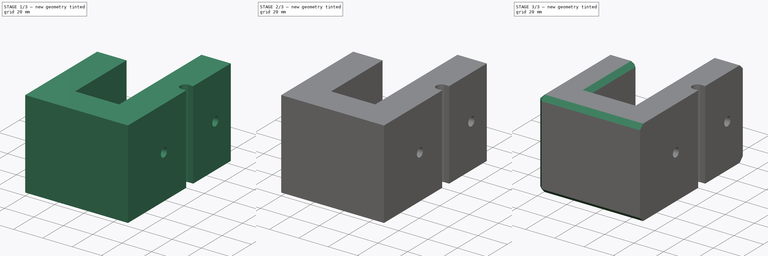
[diagram: build sequence overview — one tinted view per stage of 3, left to right]
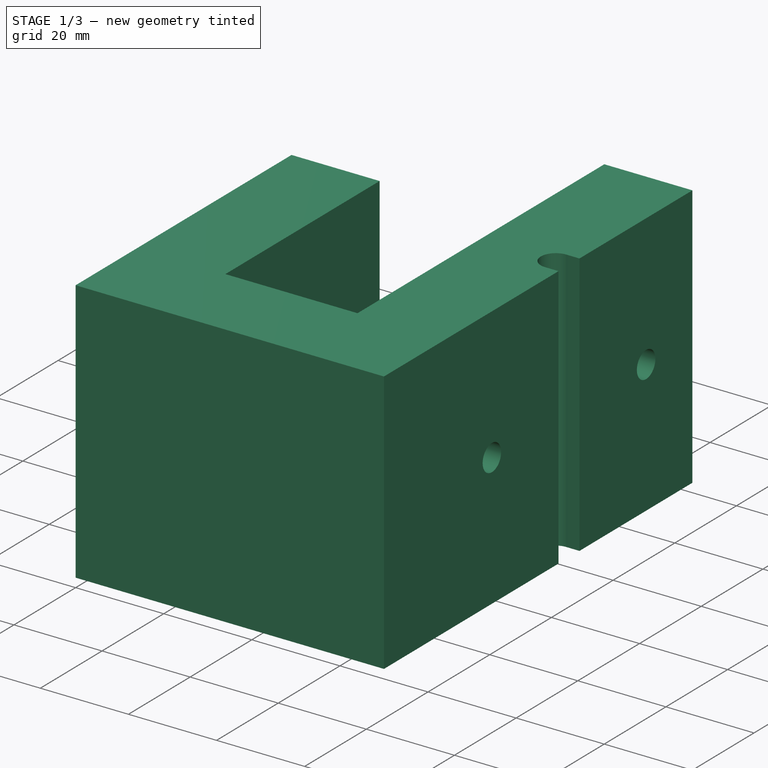
[diagram: stage 1 of 3 — iso view after this stage's code; geometry added in this stage tinted green]
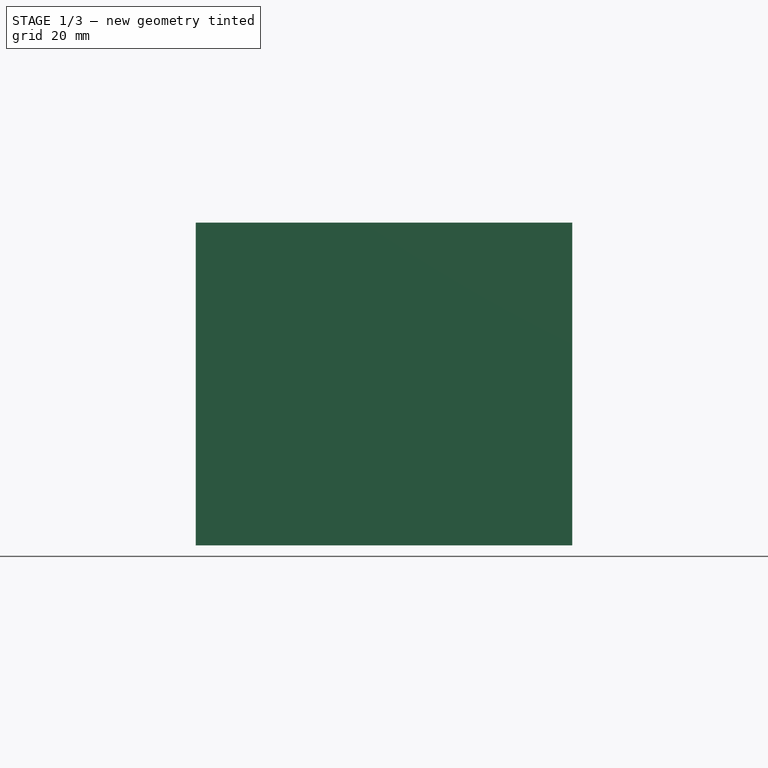
[diagram: stage 1 of 3 — front view after this stage's code; geometry added in this stage tinted green]
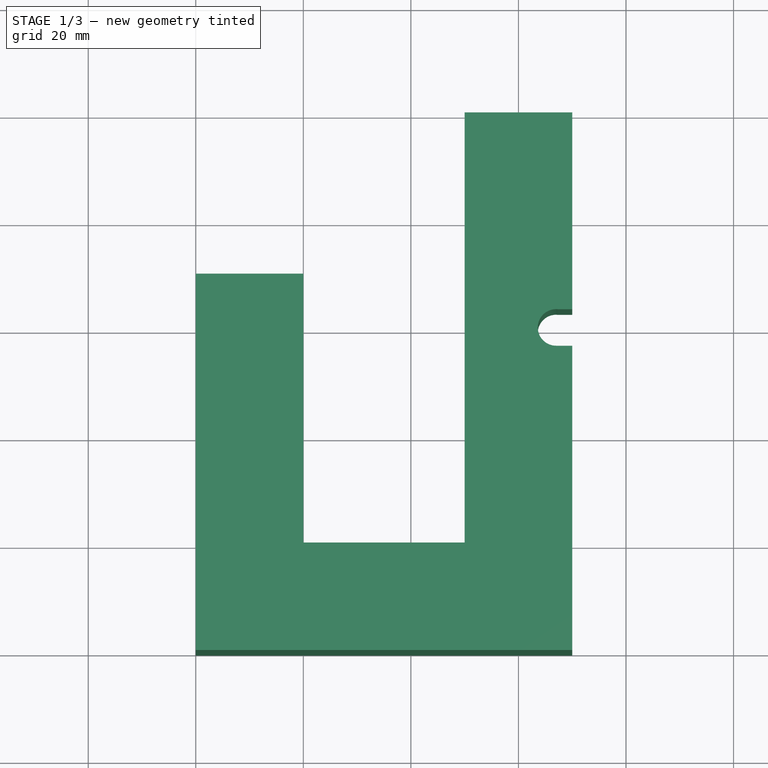
[diagram: stage 1 of 3 — top view after this stage's code; geometry added in this stage tinted green]
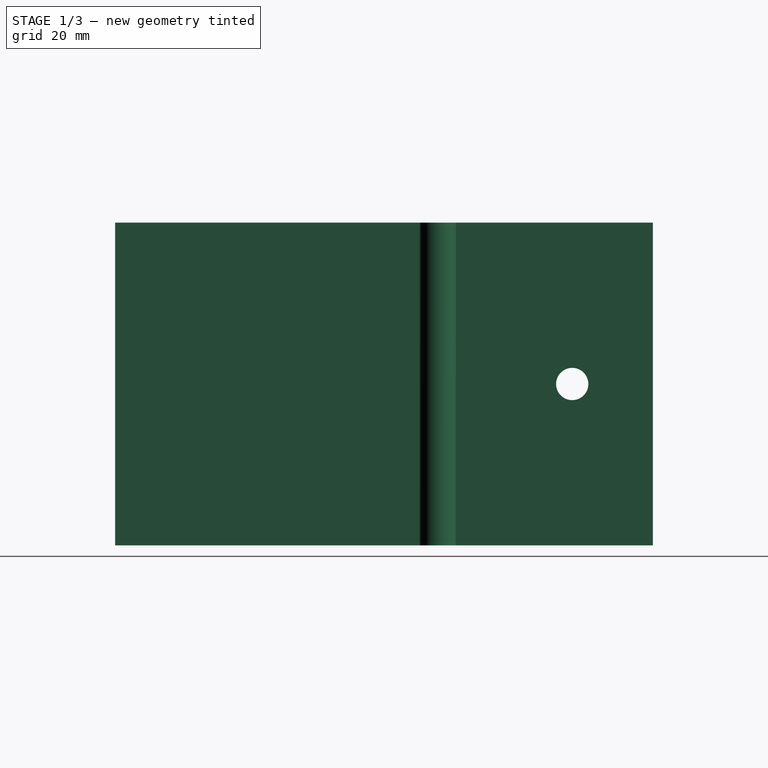
[diagram: stage 1 of 3 — right view after this stage's code; geometry added in this stage tinted green]
FCSTD DOCUMENT  (FreeCAD 0.19R24276 (Git))
Label: dusk collector power cord hook
License: All rights reserved
LicenseURL: http://en.wikipedia.org/wiki/All_rights_reserved
objects: Sketcher::SketchObject×4, PartDesign::Chamfer×4, PartDesign::Plane×3, PartDesign::Pocket×3, PartDesign::Pad×1, PartDesign::Body×1
note: 24 computed .brp shape members not serialized (recipe doc carries the construction recipe); baked Part::Feature solids carry a one-line shape summary decoded from their .brp

FEATURE [Sketcher::SketchObject] Sketch
  FullyConstrained = true
  MapMode = 5
  Support = -> [XY_Plane]
  sketch-geometry (8):
    g0: LineSegment StartX=0 StartY=70 StartZ=0 EndX=20 EndY=70 EndZ=0
    g1: LineSegment StartX=20 StartY=70 StartZ=0 EndX=20 EndY=20 EndZ=0
    g2: LineSegment StartX=20 StartY=20 StartZ=0 EndX=50 EndY=20 EndZ=0
    g3: LineSegment StartX=50 StartY=20 StartZ=0 EndX=50 EndY=100 EndZ=0
    g4: LineSegment StartX=50 StartY=100 StartZ=0 EndX=70 EndY=100 EndZ=0
    g5: LineSegment StartX=70 StartY=100 StartZ=0 EndX=70 EndY=0 EndZ=0
    g6: LineSegment StartX=70 StartY=0 StartZ=0 EndX=0 EndY=0 EndZ=0
    g7: LineSegment StartX=0 StartY=0 StartZ=0 EndX=0 EndY=70 EndZ=0
  constraints (24):
    c: Coincident(g0,g1)
    c: Vertical(g1)
    c: Coincident(g1,g2)
    c: Horizontal(g2)
    c: Coincident(g2,g3)
    c: Vertical(g3)
    c: Coincident(g3,g4)
    c: Horizontal(g4)
    c: Coincident(g4,g5)
    c: Vertical(g5)
    c: Coincident(g5,g6)
    c: Horizontal(g6)
    c: Coincident(g6,g7)
    c: Coincident(g7,g0)
    c: Vertical(g7)
    c: Horizontal(g0)
    c: DistanceX(g0,g0) = 20
    c: DistanceX(g1,g2) = 30
    c: DistanceX(g3,g4) = 20
    c: DistanceY(g1,g0) = 50
    c: DistanceY(g5,g4) = 100
    c: DistanceY(g6,g1) = 20
    c: DistanceX(g-1,g6) = 0
    c: DistanceY(g-1,g6) = 0
FEATURE [PartDesign::Pad] Pad
  Direction = (1,1,1)
  Length = 60
  Length2 = 100
  Profile = -> Sketch
  Type = 0
FEATURE [PartDesign::Plane] DatumPlane
  Length = 116.794
  MapMode = 5
  Placement = pos=(0,0,60) rot=(0,0,1;0rad)
  ResizeMode = 0
  Support = -> [Pad]
  Width = 146.794
FEATURE [Sketcher::SketchObject] Sketch001
  ExternalGeometry = -> [Pad]
  FullyConstrained = false
  MapMode = 5
  Placement = pos=(0,0,60) rot=(0,0,1;0rad)
  Support = -> [DatumPlane]
  sketch-geometry (4):
    g0: ArcOfCircle CenterX=67 CenterY=60 CenterZ=0 NormalX=0 NormalY=0 NormalZ=1 AngleXU=0 Radius=3.4 StartAngle=1.49199 EndAngle=4.71239
    g1: LineSegment StartX=67.2677 StartY=63.3894 StartZ=0 EndX=70 EndY=63.3894 EndZ=0
    g2: LineSegment StartX=67 StartY=56.6 StartZ=0 EndX=70 EndY=56.6 EndZ=0
    g3: LineSegment StartX=70 StartY=63.3894 StartZ=0 EndX=70 EndY=56.6 EndZ=0
  constraints (11):
    c: DistanceY(g0,g-3) = 40
    c: Radius(g0) = 3.4
    c: DistanceX(g0,g-3) = 3
    c: PointOnObject(g1,g-3)
    c: Horizontal(g1)
    c: PointOnObject(g2,g-3)
    c: Horizontal(g2)
    c: Coincident(g0,g1)
    c: Tangent(g0,g2) = -1.5708
    c: Coincident(g3,g1)
    c: Coincident(g3,g2)
FEATURE [PartDesign::Pocket] Pocket
  BaseFeature = -> Pad
  Length = 5
  Length2 = 100
  Profile = -> Sketch001
  Type = 1
FEATURE [PartDesign::Plane] DatumPlane001
  Length = 145.616
  MapMode = 5
  Placement = pos=(50,0,0) rot=(0.57735,-0.57735,-0.57735;2.0944rad)
  ResizeMode = 0
  Support = -> [Pocket]
  Width = 105.616
FEATURE [Sketcher::SketchObject] Sketch002
  ExternalGeometry = -> [DatumPlane,Pocket]
  FullyConstrained = true
  MapMode = 5
  Placement = pos=(50,0,0) rot=(0.57735,-0.57735,-0.57735;2.0944rad)
  Support = -> [Pocket]
  sketch-geometry (2):
    g0: Circle CenterX=-85 CenterY=30 CenterZ=0 NormalX=0 NormalY=0 NormalZ=1 AngleXU=0 Radius=3
    g1: Circle CenterX=-35 CenterY=30 CenterZ=0 NormalX=0 NormalY=0 NormalZ=1 AngleXU=0 Radius=3
  constraints (6):
    c: Radius(g0) = 3
    c: DistanceX(g-5,g0) = 15
    c: DistanceY(g0,g-5) = 30
    c: Radius(g1) = 3
    c: DistanceY(g1,g-5) = 30
    c: DistanceX(g0,g1) = 50
FEATURE [PartDesign::Pocket] Pocket001
  BaseFeature = -> Pocket
  Length = 5
  Length2 = 100
  Profile = -> Sketch002
  Type = 1
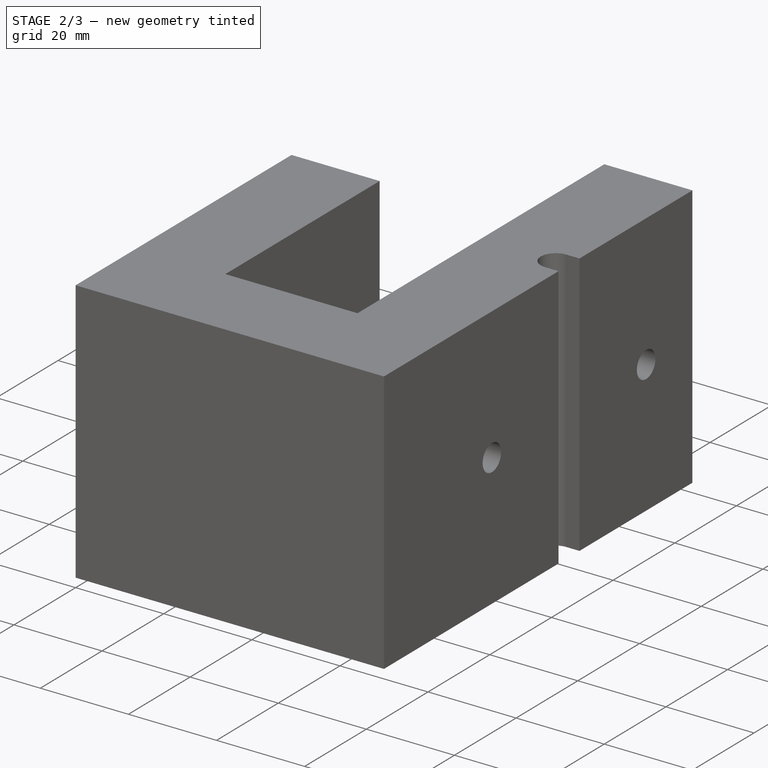
[diagram: stage 2 of 3 — iso view after this stage's code; geometry added in this stage tinted green]
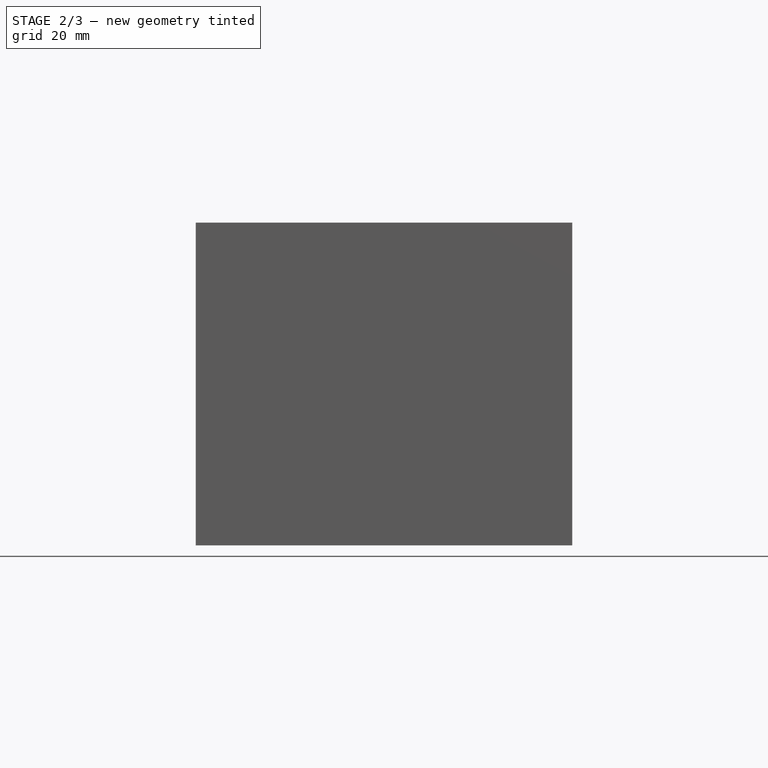
[diagram: stage 2 of 3 — front view after this stage's code; geometry added in this stage tinted green]
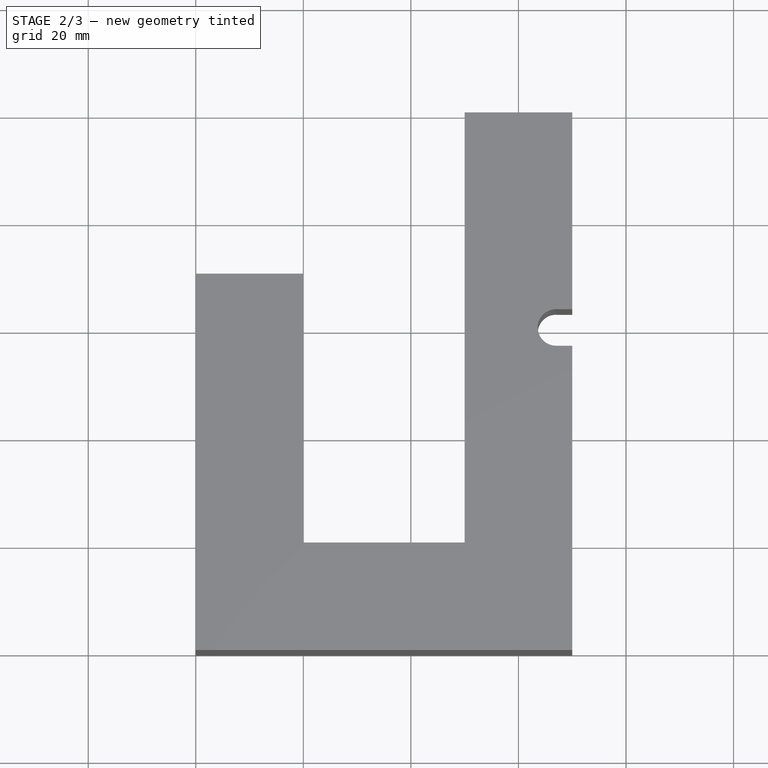
[diagram: stage 2 of 3 — top view after this stage's code; geometry added in this stage tinted green]
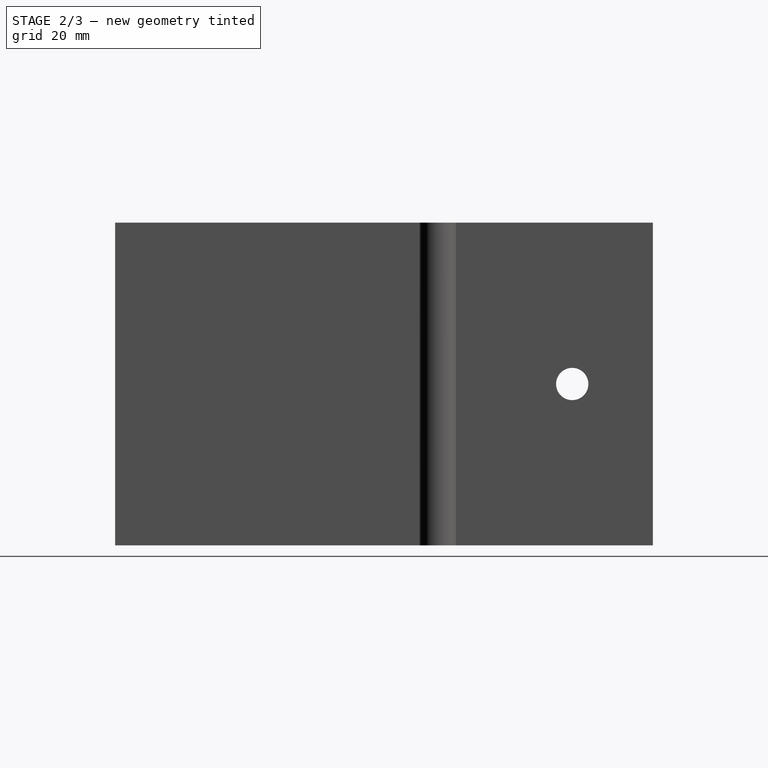
[diagram: stage 2 of 3 — right view after this stage's code; geometry added in this stage tinted green]
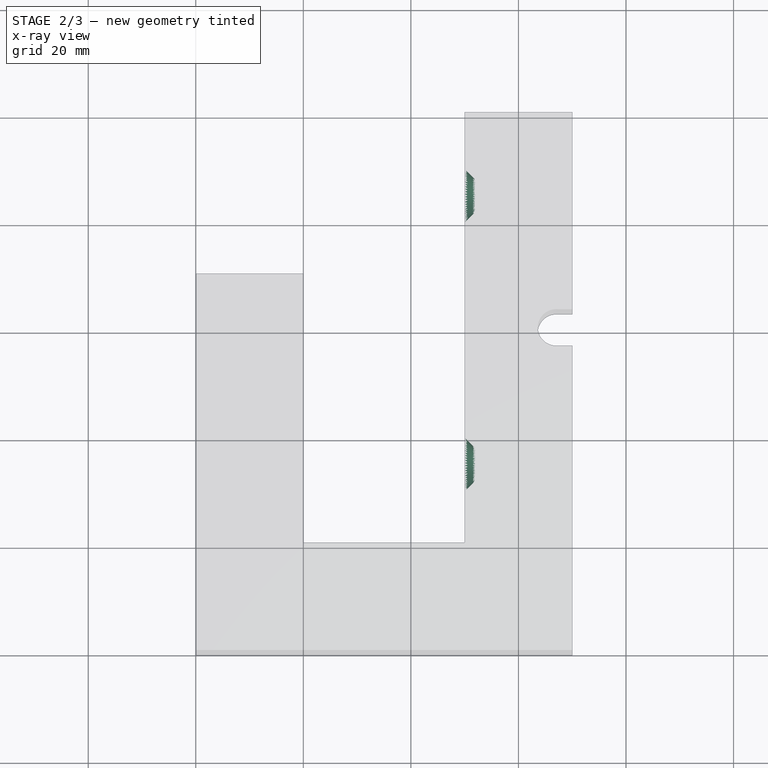
[diagram: stage 2 of 3 — x-ray composite at the top view; earlier geometry ghosted, this stage's added geometry solid]
FEATURE [PartDesign::Chamfer] Chamfer
  Angle = 45
  Base = -> Pocket001 [Edge40]
  BaseFeature = -> Pocket001
  ChamferType = 0
  FlipDirection = false
  Size = 2
  Size2 = 1
  SupportTransform = false
FEATURE [PartDesign::Chamfer] Chamfer001
  Angle = 45
  Base = -> Chamfer [Edge6]
  BaseFeature = -> Chamfer
  ChamferType = 0
  FlipDirection = false
  Size = 2
  Size2 = 1
  SupportTransform = false
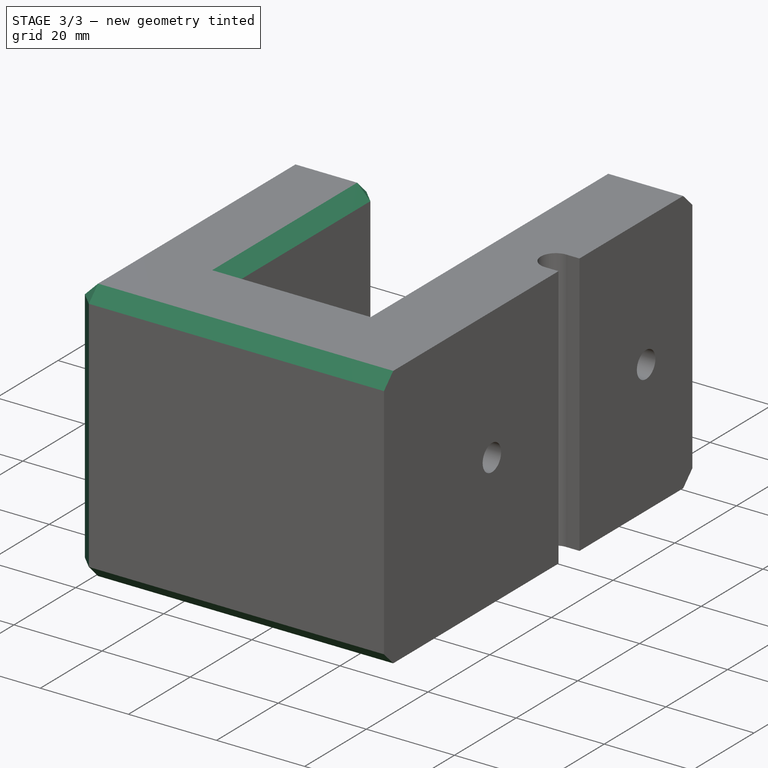
[diagram: stage 3 of 3 — iso view after this stage's code; geometry added in this stage tinted green]
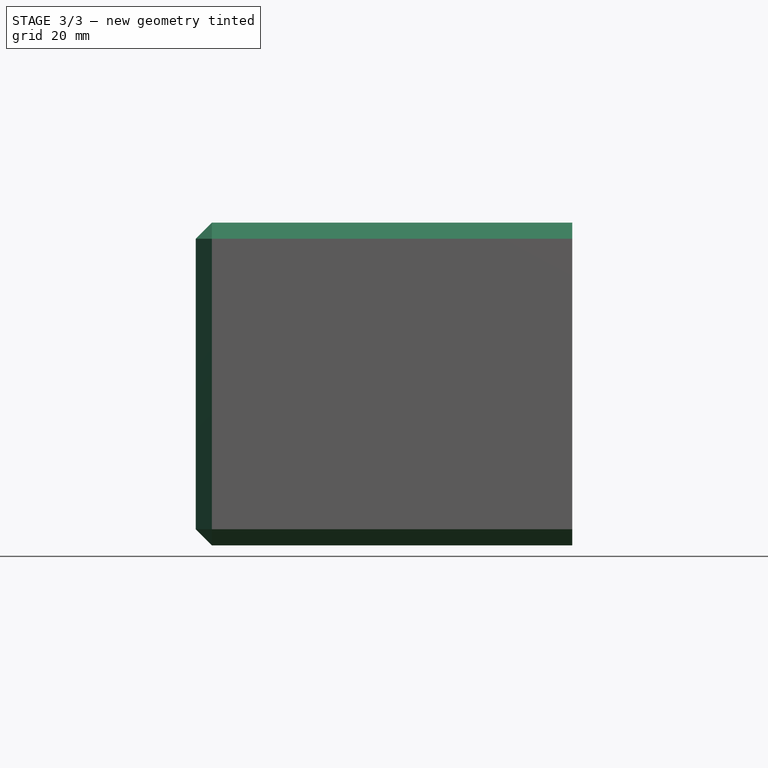
[diagram: stage 3 of 3 — front view after this stage's code; geometry added in this stage tinted green]
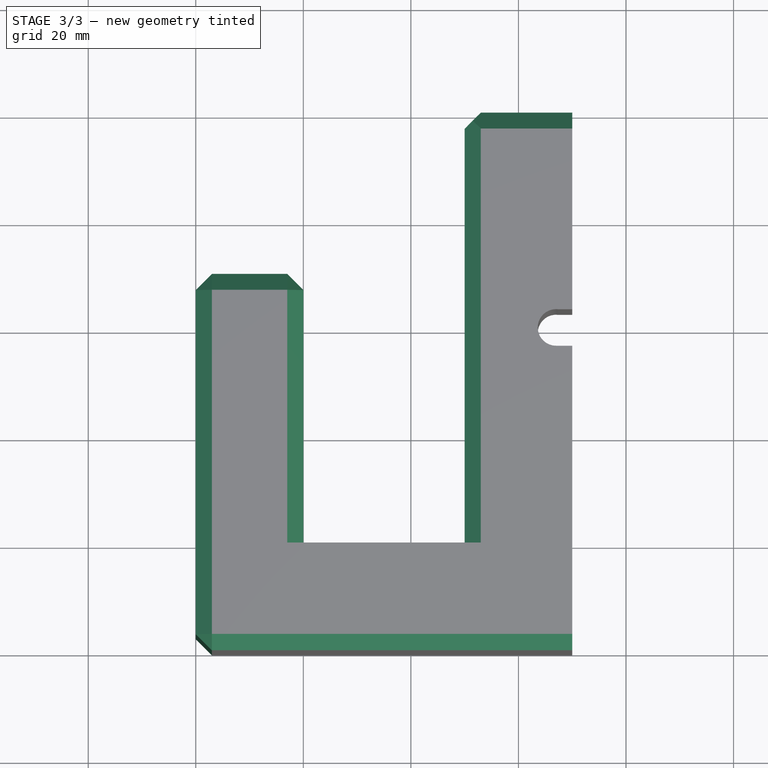
[diagram: stage 3 of 3 — top view after this stage's code; geometry added in this stage tinted green]
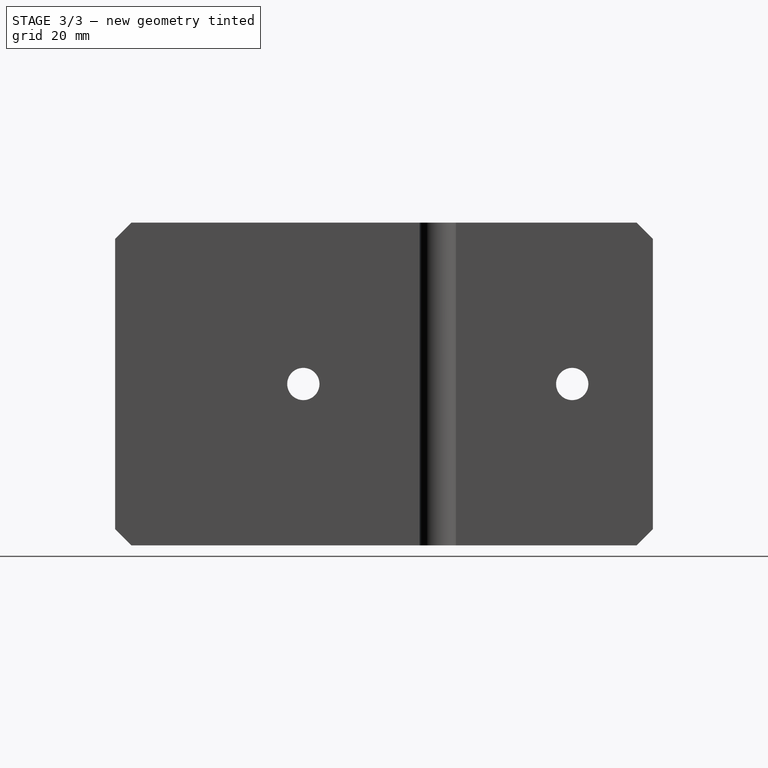
[diagram: stage 3 of 3 — right view after this stage's code; geometry added in this stage tinted green]
FEATURE [PartDesign::Chamfer] Chamfer002
  Angle = 45
  Base = -> Chamfer001 [Edge6,Edge4,Edge5]
  BaseFeature = -> Chamfer001
  ChamferType = 0
  FlipDirection = false
  Size = 3
  Size2 = 1
  SupportTransform = false
FEATURE [PartDesign::Chamfer] Chamfer003
  Angle = 45
  Base = -> Chamfer002 [Edge41,Edge55,Edge31,Edge53,Edge42,Edge32,Edge37,Edge39,Edge11,Edge27,Edge29,Edge43,Edge23,Edge33]
  BaseFeature = -> Chamfer002
  ChamferType = 0
  FlipDirection = false
  Size = 3
  Size2 = 1
  SupportTransform = false
FEATURE [PartDesign::Plane] DatumPlane002
  Length = 145.616
  MapMode = 5
  Placement = pos=(0,0,0) rot=(0.57735,-0.57735,-0.57735;2.0944rad)
  ResizeMode = 0
  Support = -> [Chamfer003]
  Width = 105.616
FEATURE [Sketcher::SketchObject] Sketch003
  ExternalGeometry = -> [Chamfer003]
  FullyConstrained = true
  MapMode = 5
  Placement = pos=(0,0,0) rot=(0.57735,-0.57735,-0.57735;2.0944rad)
  Support = -> [DatumPlane002]
  sketch-geometry (1):
    g0: Circle CenterX=-35 CenterY=30 CenterZ=0 NormalX=0 NormalY=0 NormalZ=1 AngleXU=0 Radius=5
  constraints (3):
    c: Radius(g0) = 5
    c: DistanceY(g0,g-3) = 30
    c: DistanceX(g-4,g0) = 65
FEATURE [PartDesign::Pocket] Pocket002
  BaseFeature = -> Chamfer003
  Length = 5
  Length2 = 100
  Profile = -> Sketch003
  Type = 2
FEATURE [PartDesign::Body] Body
  Group = -> [Sketch,Pad,DatumPlane,Sketch001,Pocket,DatumPlane001,Sketch002,Pocket001,Chamfer,Chamfer001,Chamfer002,Chamfer003,DatumPlane002,Sketch003,Pocket002]
  Origin = -> Origin
  Tip = -> Pocket002
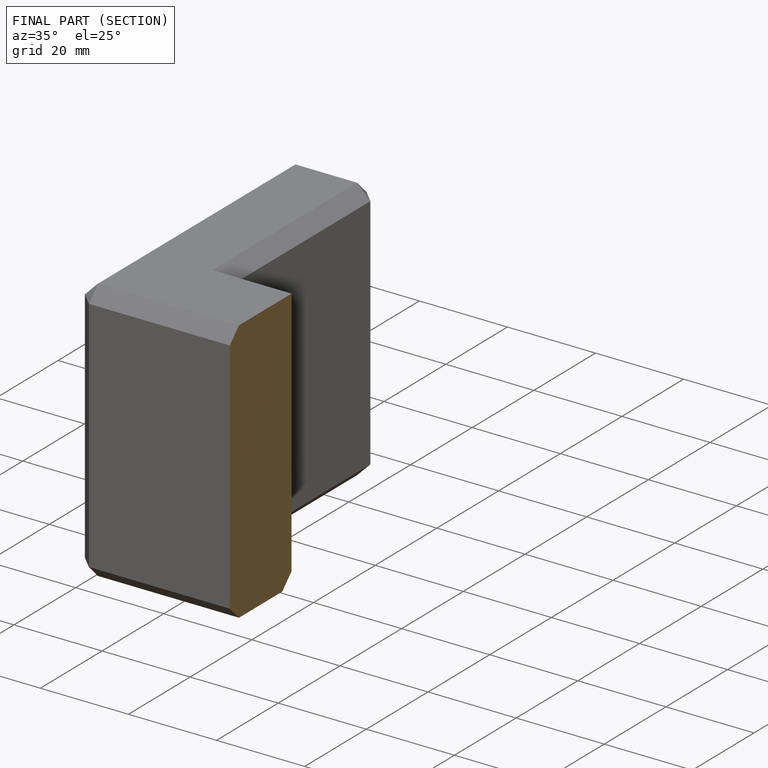
[diagram: finished part — half-section view (interior)]
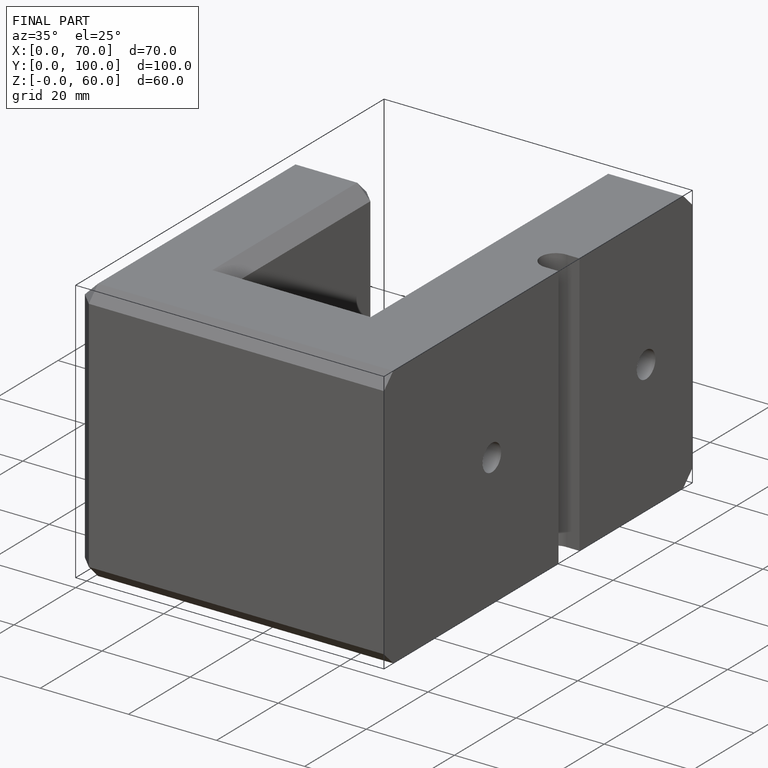
[diagram: finished part — iso view with bounding-box wireframe]
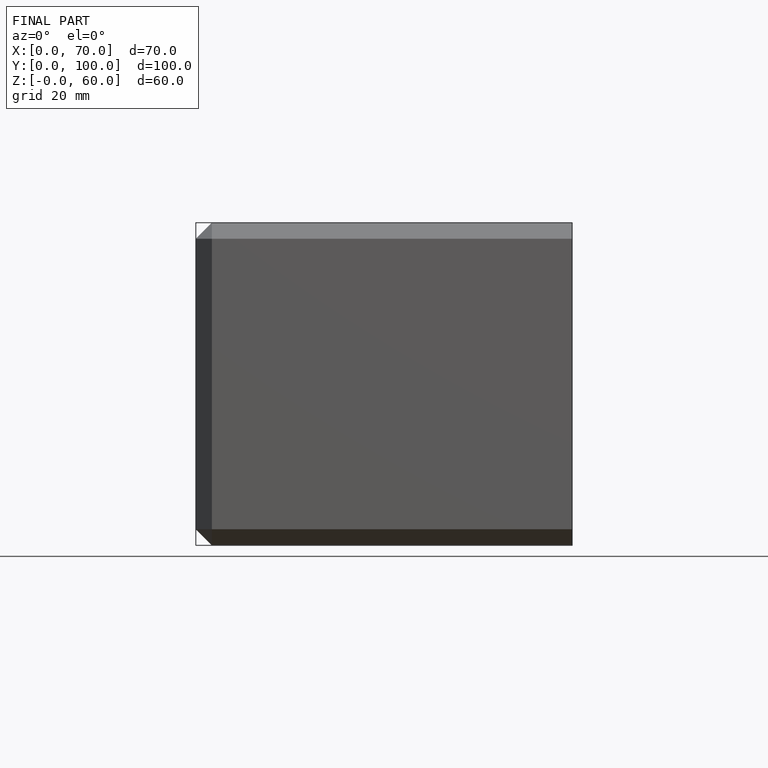
[diagram: finished part — front view with bounding-box wireframe]
